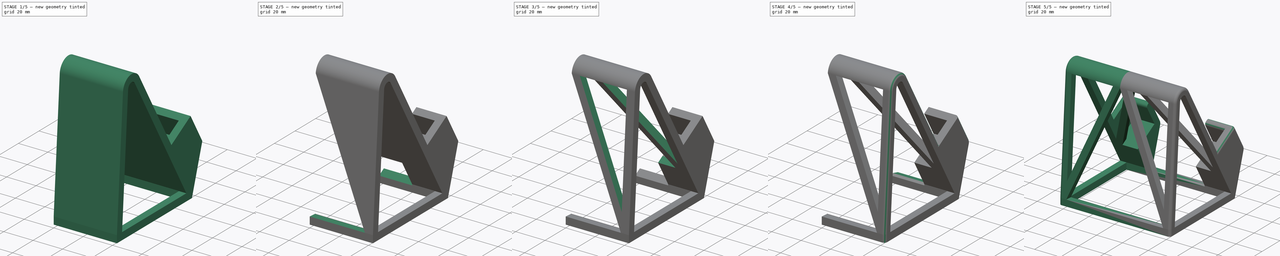
[diagram: build sequence overview — one tinted view per stage of 5, left to right]
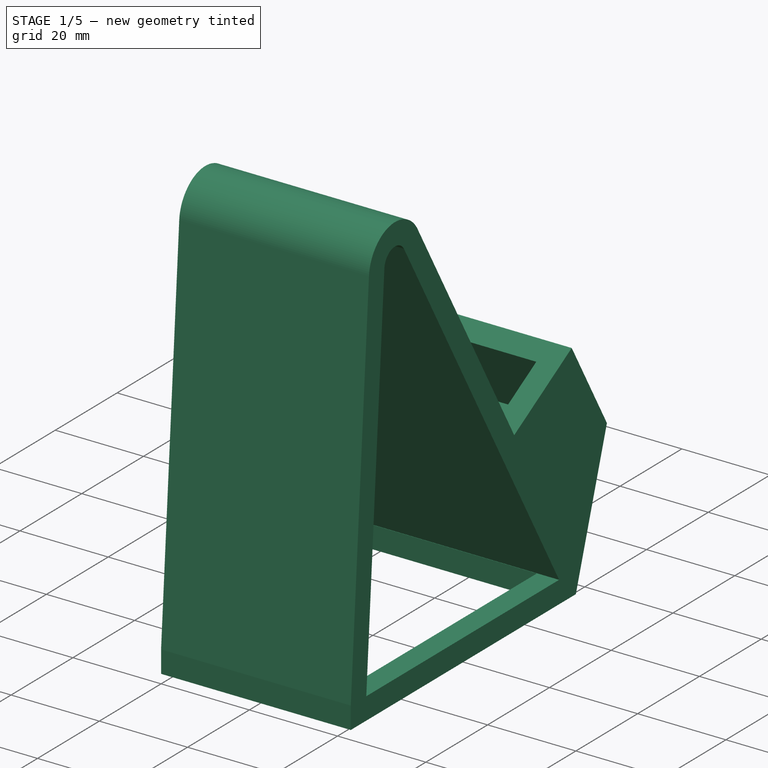
[diagram: stage 1 of 5 — iso view after this stage's code; geometry added in this stage tinted green]
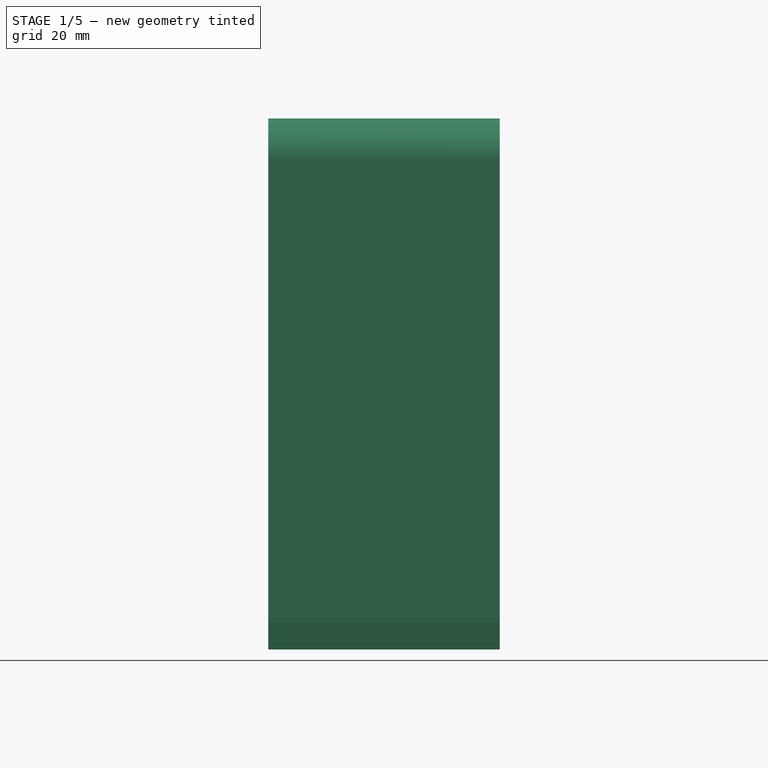
[diagram: stage 1 of 5 — front view after this stage's code; geometry added in this stage tinted green]
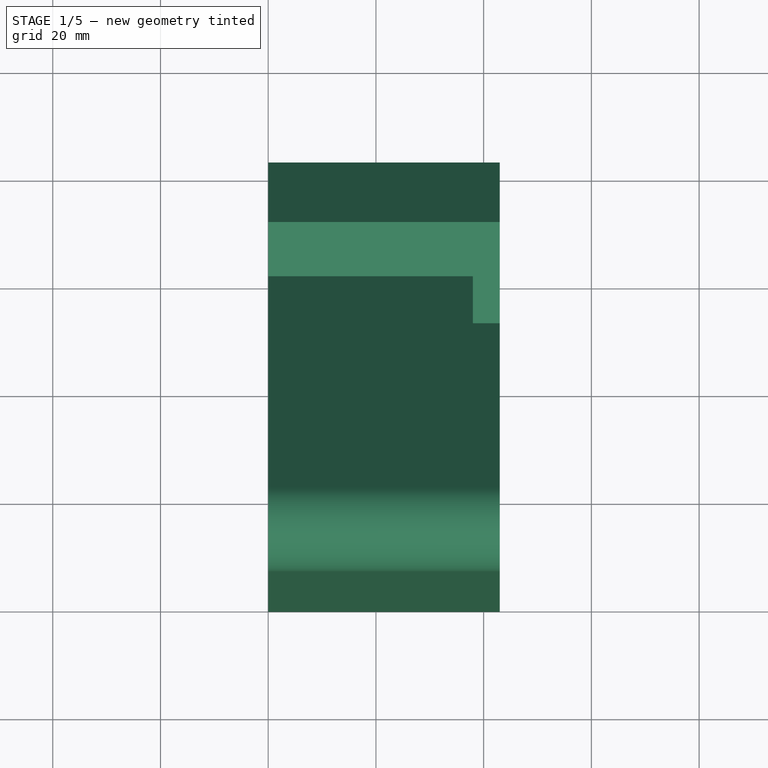
[diagram: stage 1 of 5 — top view after this stage's code; geometry added in this stage tinted green]
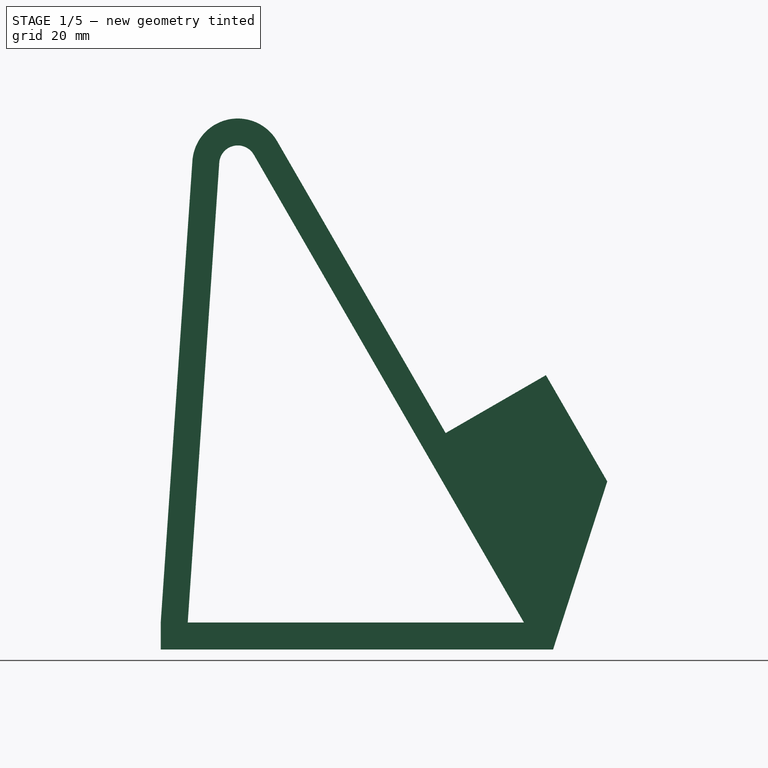
[diagram: stage 1 of 5 — right view after this stage's code; geometry added in this stage tinted green]
FCSTD DOCUMENT  (FreeCAD 0.14R3700 (Git))
Label: stand2plus
License: CC-BY 3.0
LicenseURL: http://creativecommons.org/licenses/by/3.0/
objects: Sketcher::SketchObject×10, PartDesign::Pocket×8, PartDesign::Fillet×5, PartDesign::Pad×2, Part::Fuse×2, PartDesign::Chamfer×1, Part::Mirroring×1
note: 39 computed .brp shape members not serialized (recipe doc carries the construction recipe); baked Part::Feature solids carry a one-line shape summary decoded from their .brp

FEATURE [Sketcher::SketchObject] Sketch
  Placement = pos=(0,0,0) rot=(0.57735,0.57735,0.57735;2.0944rad)
  sketch-geometry (15):
    g0: LineSegment StartX=0 StartY=5 StartZ=0 EndX=5.88072 EndY=90.7154 EndZ=0
    g1: LineSegment StartX=76.1849 StartY=32.8435 StartZ=0 EndX=67.1849 EndY=48.432 EndZ=0
    g2: LineSegment StartX=67.1849 StartY=48.432 StartZ=0 EndX=71.515 EndY=50.932 EndZ=0
    g3: LineSegment StartX=71.515 StartY=50.932 StartZ=0 EndX=82.9058 EndY=31.2026 EndZ=0
    g4: LineSegment StartX=72.8422 StartY=0 StartZ=0 EndX=0 EndY=0 EndZ=0
    g5: LineSegment StartX=0 StartY=0 StartZ=0 EndX=0 EndY=5 EndZ=0
    g6: LineSegment StartX=5.01175 StartY=5 StartZ=0 EndX=10.869 EndY=90.3732 EndZ=0
    g7: LineSegment StartX=17.2861 StartY=91.8592 StartZ=0 EndX=67.4343 EndY=5 EndZ=0
    g8: LineSegment StartX=67.4343 StartY=5 StartZ=0 EndX=5.01175 EndY=5 EndZ=0
    g9: LineSegment [constr] StartX=-19.6616 StartY=5 StartZ=0 EndX=67.4343 EndY=5 EndZ=0
    g10: ArcOfCircle CenterX=14.3042 CenterY=90.1375 CenterZ=0 NormalX=0 NormalY=0 NormalZ=1 Radius=3.44326 StartAngle=0.523599 EndAngle=3.07309
    g11: ArcOfCircle CenterX=14.3042 CenterY=90.1375 CenterZ=0 NormalX=0 NormalY=0 NormalZ=1 Radius=8.44326 StartAngle=0.5236 EndAngle=3.07309
    g12: LineSegment StartX=21.6162 StartY=94.3592 StartZ=0 EndX=61.8955 EndY=24.5935 EndZ=0
    g13: LineSegment StartX=61.8955 StartY=24.5935 StartZ=0 EndX=76.1849 EndY=32.8435 EndZ=0
    g14: LineSegment StartX=72.8422 StartY=0 StartZ=0 EndX=82.9058 EndY=31.2026 EndZ=0
  constraints (37):
    c: Coincident(g1,g2)
    c: Coincident(g2,g3)
    c: Horizontal(g4)
    c: Coincident(g4,g5)
    c: Coincident(g0,g5)
    c: Coincident(g4,g-1)
    c: Coincident(g7,g8)
    c: Parallel(g1,g3)
    c: PointOnObject(g0,g9)
    c: PointOnObject(g6,g9)
    c: Coincident(g8,g6)
    c: PointOnObject(g7,g9)
    c: Horizontal(g9)
    c: Parallel(g6,g0)
    c: Vertical(g5)
    c: DistanceY(g-1,g9) = 5
    c: Tangent(g6,g10)
    c: Tangent(g7,g10)
    c: Tangent(g0,g11)
    c: Coincident(g12,g11)
    c: Tangent(g12,g11)
    c: Angle(g7,g8) = 1.0472
    c: Parallel(g7,g12)
    c: Distance(g12,g7) = 5
    c: Distance(g6,g0) = 5
    c: Coincident(g10,g11)
    c: Angle(g2,g3) = 1.5708
    c: Distance(g1,g3) = 5
    c: Distance(g1,g12) = 16.5
    c: Coincident(g13,g12)
    c: Coincident(g13,g1)
    c: Angle(g13,g12) = 1.5708
    c: Angle(g1,g13) = 1.5708
    c: Coincident(g14,g4)
    c: Coincident(g14,g3)
    c: Coincident(g9,g7)
    c: Distance(g1,g1) = 18
FEATURE [PartDesign::Pad] Pad
  Length = 43
  Length2 = 100
  Placement = pos=(0,0,0) rot=(0.57735,0.57735,0.57735;2.0944rad)
  Sketch = -> Sketch
  Type = 0
FEATURE [Sketcher::SketchObject] Sketch001
  ExternalGeometry = -> [Pad]
  Placement = pos=(0,4.82457,-8.3564) rot=(0.250563,0.250563,-0.935113;1.63783rad)
  Support = -> Pad [Face6]
  sketch-geometry (4):
    g0: LineSegment StartX=-82.3998 StartY=38 StartZ=0 EndX=-65.8998 EndY=38 EndZ=0
    g1: LineSegment StartX=-65.8998 StartY=38 StartZ=0 EndX=-65.8998 EndY=43 EndZ=0
    g2: LineSegment StartX=-65.8998 StartY=43 StartZ=0 EndX=-82.3998 EndY=43 EndZ=0
    g3: LineSegment StartX=-82.3998 StartY=43 StartZ=0 EndX=-82.3998 EndY=38 EndZ=0
  constraints (11):
    c: Coincident(g0,g1)
    c: Coincident(g1,g2)
    c: Coincident(g2,g3)
    c: Coincident(g3,g0)
    c: Horizontal(g0)
    c: Horizontal(g2)
    c: Vertical(g1)
    c: Vertical(g3)
    c: Coincident(g2,g-4)
    c: Coincident(g1,g-5)
    c: DistanceY(g2,g0) = -5
FEATURE [PartDesign::Pad] Pad001
  Length = 18
  Length2 = 100
  Placement = pos=(0,0,0) rot=(0.57735,0.57735,0.57735;2.0944rad)
  Sketch = -> Sketch001
  Type = 0
FEATURE [Part::Fuse] Fusion
  Base = -> Pad
  Tool = -> Pad001
FEATURE [Sketcher::SketchObject] Sketch003
  ExternalGeometry = -> [Fusion]
  Placement = pos=(0,0,0) rot=(1,0,0;3.14159rad)
  Support = -> Fusion [Face1]
  sketch-geometry (4):
    g0: LineSegment StartX=38 StartY=-5 StartZ=0 EndX=0 EndY=-5 EndZ=0
    g1: LineSegment StartX=0 StartY=-5 StartZ=0 EndX=0 EndY=-67.3422 EndZ=0
    g2: LineSegment StartX=0 StartY=-67.3422 StartZ=0 EndX=38 EndY=-67.3422 EndZ=0
    g3: LineSegment StartX=38 StartY=-67.3422 StartZ=0 EndX=38 EndY=-5 EndZ=0
  constraints (12):
    c: Coincident(g0,g1)
    c: Coincident(g1,g2)
    c: Coincident(g2,g3)
    c: Coincident(g3,g0)
    c: Horizontal(g0)
    c: Horizontal(g2)
    c: Vertical(g1)
    c: Vertical(g3)
    c: DistanceY(g-3,g1) = 5.5
    c: PointOnObject(g1,g-2)
    c: DistanceX(g2,g-3) = 5
    c: DistanceY(g-1,g0) = -5
FEATURE [PartDesign::Pocket] Pocket
  Length = 5
  Sketch = -> Sketch003
  Type = 0
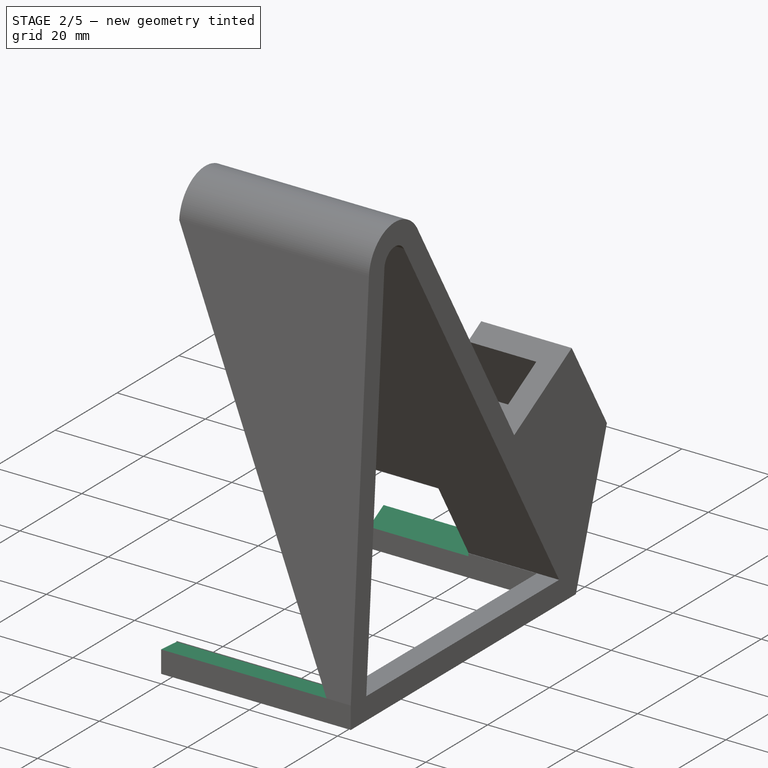
[diagram: stage 2 of 5 — iso view after this stage's code; geometry added in this stage tinted green]
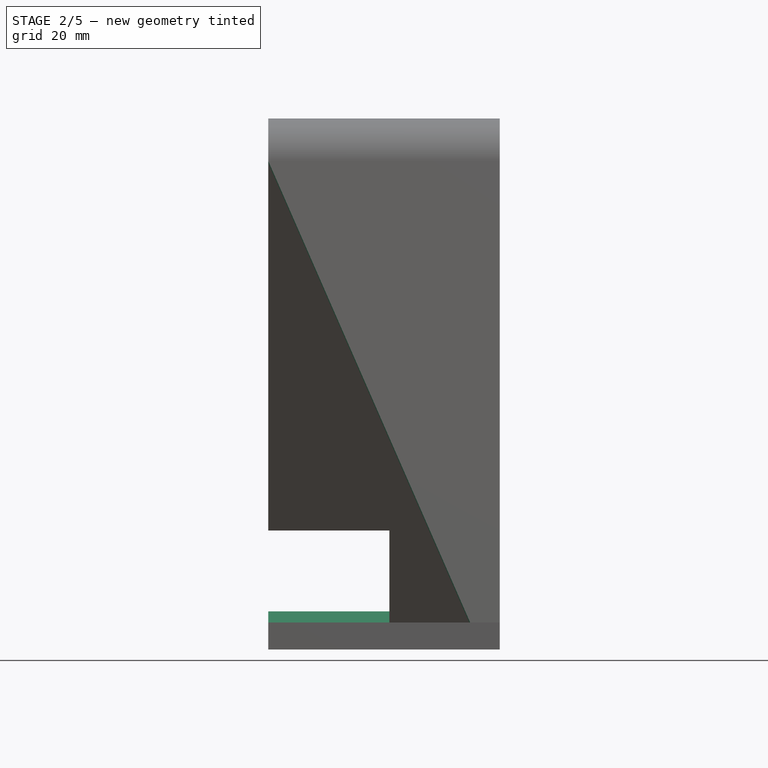
[diagram: stage 2 of 5 — front view after this stage's code; geometry added in this stage tinted green]
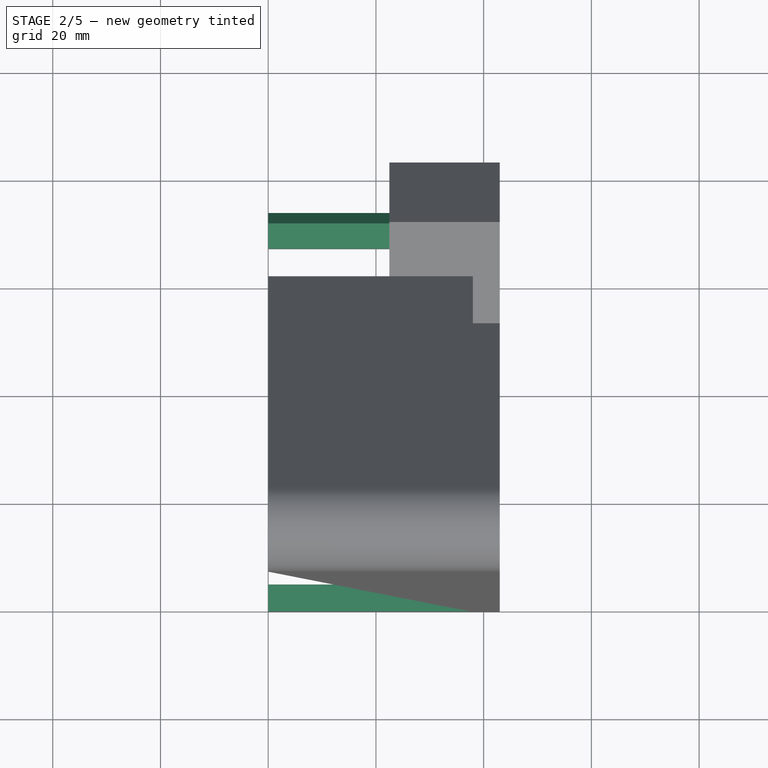
[diagram: stage 2 of 5 — top view after this stage's code; geometry added in this stage tinted green]
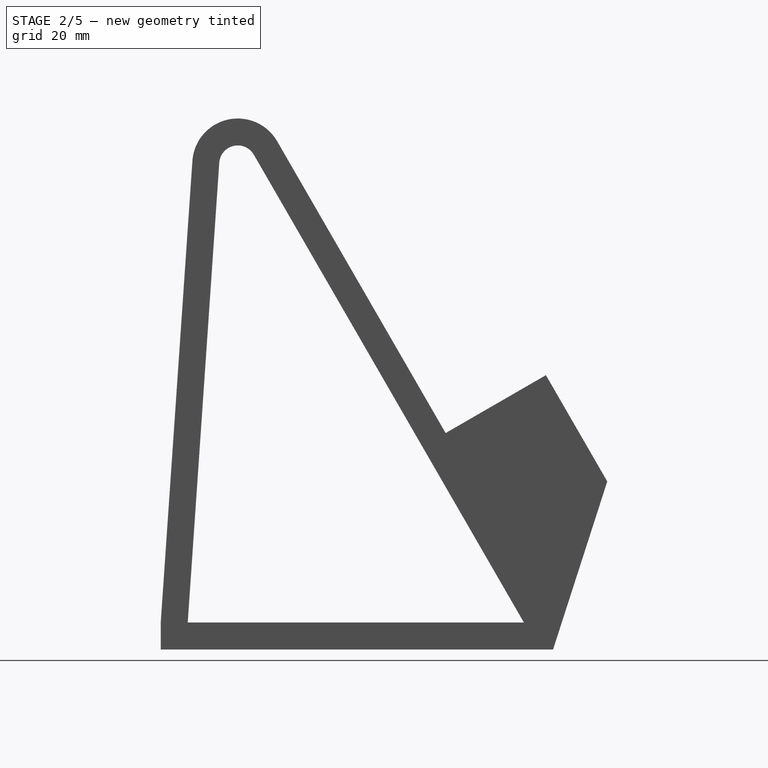
[diagram: stage 2 of 5 — right view after this stage's code; geometry added in this stage tinted green]
FEATURE [Sketcher::SketchObject] Sketch004
  Placement = pos=(0,-4.17543,7.23206) rot=(1,0,0;0.523599rad)
  Support = -> Pocket [Face19]
  sketch-geometry (4):
    g0: LineSegment StartX=22.5 StartY=82.3998 StartZ=0 EndX=0 EndY=82.3998 EndZ=0
    g1: LineSegment StartX=0 StartY=82.3998 StartZ=0 EndX=0 EndY=87.3998 EndZ=0
    g2: LineSegment StartX=0 StartY=87.3998 StartZ=0 EndX=22.5 EndY=87.3998 EndZ=0
    g3: LineSegment StartX=22.5 StartY=87.3998 StartZ=0 EndX=22.5 EndY=82.3998 EndZ=0
  constraints (8):
    c: Coincident(g0,g1)
    c: Coincident(g1,g2)
    c: Coincident(g2,g3)
    c: Coincident(g3,g0)
    c: Horizontal(g0)
    c: Horizontal(g2)
    c: Vertical(g1)
    c: Vertical(g3)
FEATURE [PartDesign::Pocket] Pocket001
  Length = 5
  Sketch = -> Sketch004
  Type = 1
FEATURE [Sketcher::SketchObject] Sketch005
  Placement = pos=(0,4.82457,-8.3564) rot=(1,0,0;0.523599rad)
  Support = -> Pocket001 [Face17]
  sketch-geometry (4):
    g0: LineSegment StartX=22.5 StartY=65.8998 StartZ=0 EndX=0 EndY=65.8998 EndZ=0
    g1: LineSegment StartX=0 StartY=65.8998 StartZ=0 EndX=0 EndY=82.3998 EndZ=0
    g2: LineSegment StartX=0 StartY=82.3998 StartZ=0 EndX=22.5 EndY=82.3998 EndZ=0
    g3: LineSegment StartX=22.5 StartY=82.3998 StartZ=0 EndX=22.5 EndY=65.8998 EndZ=0
  constraints (8):
    c: Coincident(g0,g1)
    c: Coincident(g1,g2)
    c: Coincident(g2,g3)
    c: Coincident(g3,g0)
    c: Horizontal(g0)
    c: Horizontal(g2)
    c: Vertical(g1)
    c: Vertical(g3)
FEATURE [PartDesign::Pocket] Pocket002
  Length = 5
  Sketch = -> Sketch005
  Type = 1
FEATURE [Sketcher::SketchObject] Sketch006
  Placement = pos=(0,57.0709,32.9499) rot=(0,0.5,0.866025;3.14159rad)
  Support = -> Pocket002 [Face17]
  sketch-geometry (4):
    g0: LineSegment StartX=0 StartY=-29.8739 StartZ=0 EndX=-22.5 EndY=-29.8739 EndZ=0
    g1: LineSegment StartX=-22.5 StartY=-29.8739 StartZ=0 EndX=-22.5 EndY=-9.64914 EndZ=0
    g2: LineSegment StartX=-22.5 StartY=-9.64914 StartZ=0 EndX=0 EndY=-9.64914 EndZ=0
    g3: LineSegment StartX=0 StartY=-9.64914 StartZ=0 EndX=0 EndY=-29.8739 EndZ=0
  constraints (8):
    c: Coincident(g0,g1)
    c: Coincident(g1,g2)
    c: Coincident(g2,g3)
    c: Coincident(g3,g0)
    c: Horizontal(g0)
    c: Horizontal(g2)
    c: Vertical(g1)
    c: Vertical(g3)
FEATURE [PartDesign::Pocket] Pocket003
  Length = 6
  Sketch = -> Sketch006
  Type = 0
FEATURE [Sketcher::SketchObject] Sketch007
  Placement = pos=(0,-0.34143,0.0234246) rot=(1,0,0;1.5023rad)
  Support = -> Pocket003 [Face19]
  sketch-geometry (3):
    g0: LineSegment StartX=0 StartY=90.9052 StartZ=0 EndX=37.5 EndY=4.98827 EndZ=0
    g1: LineSegment StartX=37.5 StartY=4.98827 StartZ=0 EndX=0 EndY=4.98827 EndZ=0
    g2: LineSegment StartX=0 StartY=4.98827 StartZ=0 EndX=0 EndY=90.9052 EndZ=0
  constraints (4):
    c: Coincident(g0,g1)
    c: Horizontal(g1)
    c: Coincident(g1,g2)
    c: Coincident(g2,g0)
FEATURE [PartDesign::Pocket] Pocket004
  Length = 5
  Sketch = -> Sketch007
  Type = 0
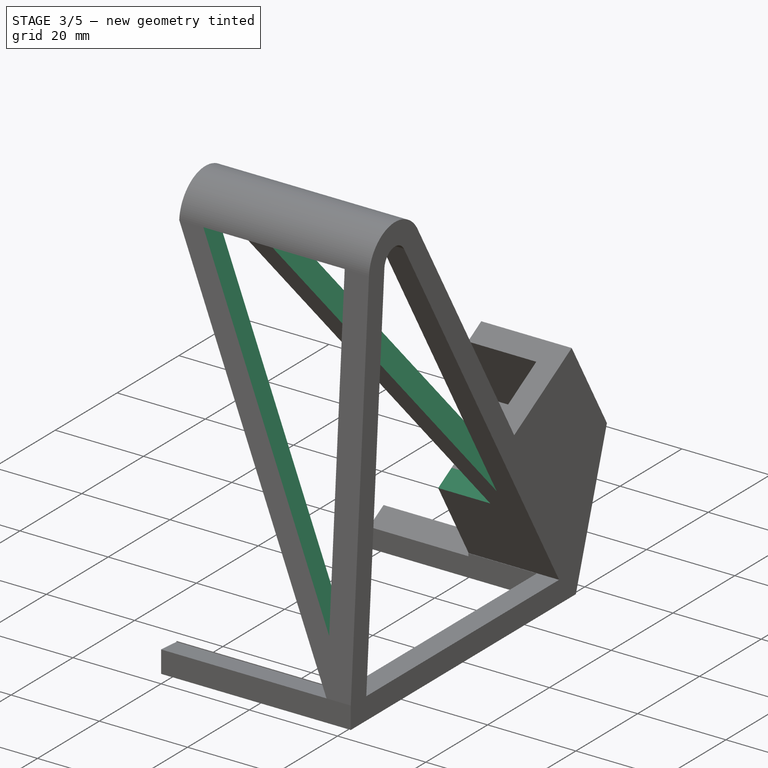
[diagram: stage 3 of 5 — iso view after this stage's code; geometry added in this stage tinted green]
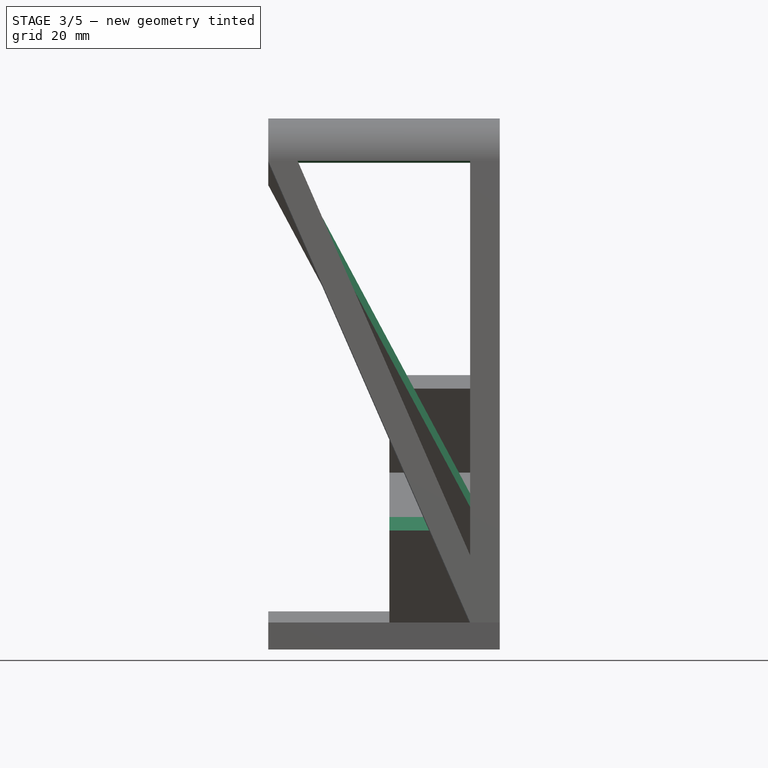
[diagram: stage 3 of 5 — front view after this stage's code; geometry added in this stage tinted green]
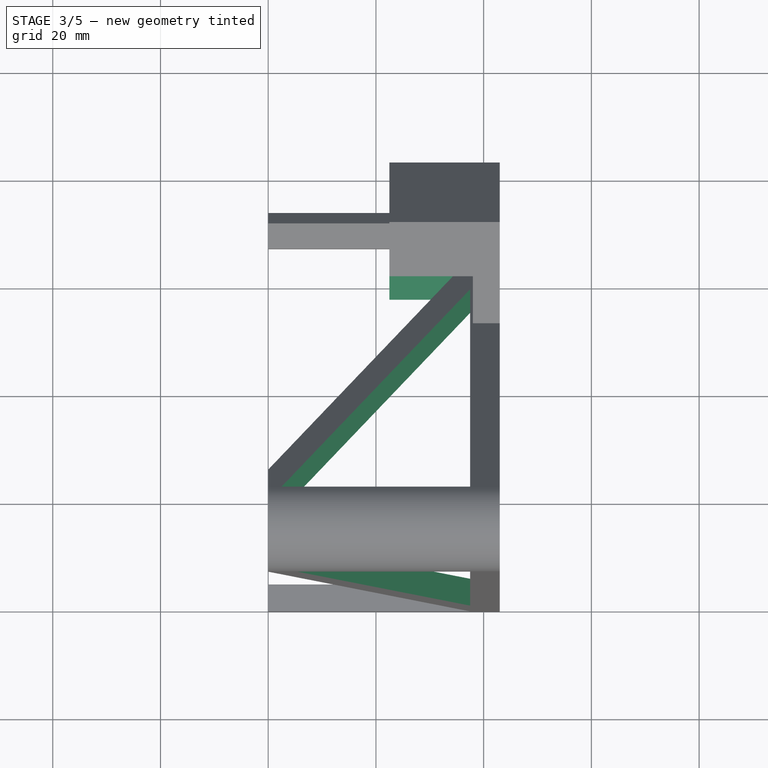
[diagram: stage 3 of 5 — top view after this stage's code; geometry added in this stage tinted green]
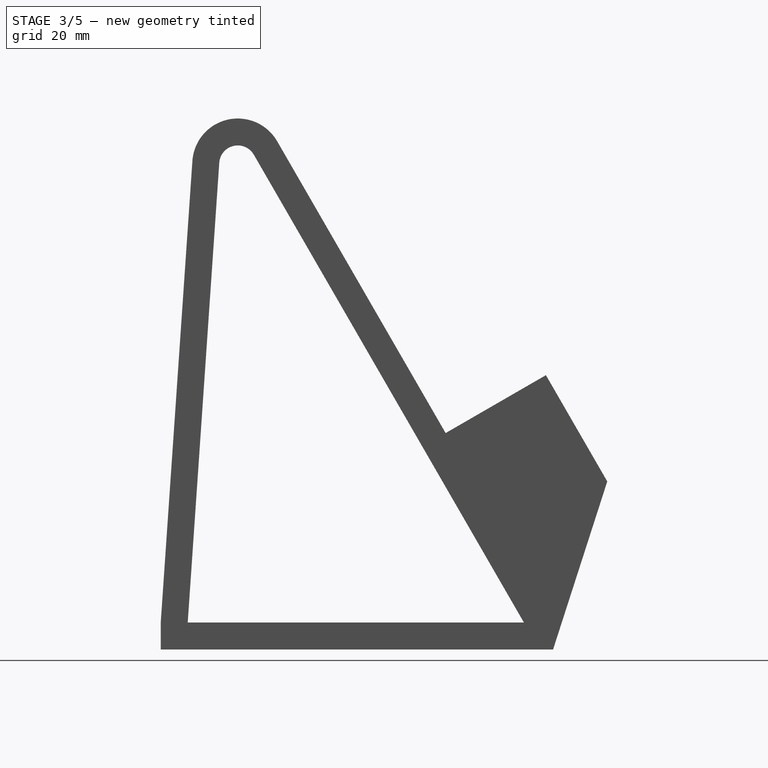
[diagram: stage 3 of 5 — right view after this stage's code; geometry added in this stage tinted green]
FEATURE [Sketcher::SketchObject] Sketch008
  Placement = pos=(0,-0.34143,0.0234246) rot=(1,0,0;1.5023rad)
  Support = -> Pocket004 [Face18]
  sketch-geometry (3):
    g0: LineSegment StartX=37.5 StartY=90.9052 StartZ=0 EndX=37.5 EndY=17.4875 EndZ=0
    g1: LineSegment StartX=37.5 StartY=17.4875 StartZ=0 EndX=5.45551 EndY=90.9052 EndZ=0
    g2: LineSegment StartX=5.45551 StartY=90.9052 StartZ=0 EndX=37.5 EndY=90.9052 EndZ=0
  constraints (5):
    c: Vertical(g0)
    c: Coincident(g0,g1)
    c: Coincident(g1,g2)
    c: Horizontal(g2)
    c: Coincident(g0,g2)
FEATURE [PartDesign::Pocket] Pocket005
  Length = 5
  Sketch = -> Sketch008
  Type = 0
FEATURE [Sketcher::SketchObject] Sketch009
  Placement = pos=(0,57.0709,32.9499) rot=(0,0.5,0.866025;3.14159rad)
  Support = -> Pocket005 [Face21]
  sketch-geometry (3):
    g0: LineSegment StartX=-37.5 StartY=70.9093 StartZ=0 EndX=-2.5 EndY=70.9093 EndZ=0
    g1: LineSegment StartX=-2.5 StartY=70.9093 StartZ=0 EndX=-37.5 EndY=-4.64914 EndZ=0
    g2: LineSegment StartX=-37.5 StartY=-4.64914 StartZ=0 EndX=-37.5 EndY=70.9093 EndZ=0
  constraints (6):
    c: Horizontal(g0)
    c: Coincident(g0,g1)
    c: Coincident(g1,g2)
    c: Coincident(g2,g0)
    c: Vertical(g2)
    c: DistanceX(g-1,g0) = -2.5
FEATURE [PartDesign::Pocket] Pocket006
  Length = 5
  Sketch = -> Sketch009
  Type = 0
FEATURE [Sketcher::SketchObject] Sketch010
  Placement = pos=(0,57.0709,32.9499) rot=(0,0.5,0.866025;3.14159rad)
  Support = -> Pocket006 [Face11]
  sketch-geometry (3):
    g0: LineSegment StartX=0 StartY=64.4105 StartZ=0 EndX=-34.3057 EndY=-9.64914 EndZ=0
    g1: LineSegment StartX=-34.3057 StartY=-9.64914 StartZ=0 EndX=0 EndY=-9.64914 EndZ=0
    g2: LineSegment StartX=0 StartY=-9.64914 StartZ=0 EndX=0 EndY=64.4105 EndZ=0
  constraints (6):
    c: Coincident(g0,g1)
    c: PointOnObject(g1,g-2)
    c: Horizontal(g1)
    c: Coincident(g1,g2)
    c: Coincident(g2,g0)
    c: Vertical(g2)
FEATURE [PartDesign::Pocket] Pocket007
  Length = 5
  Sketch = -> Sketch010
  Type = 0
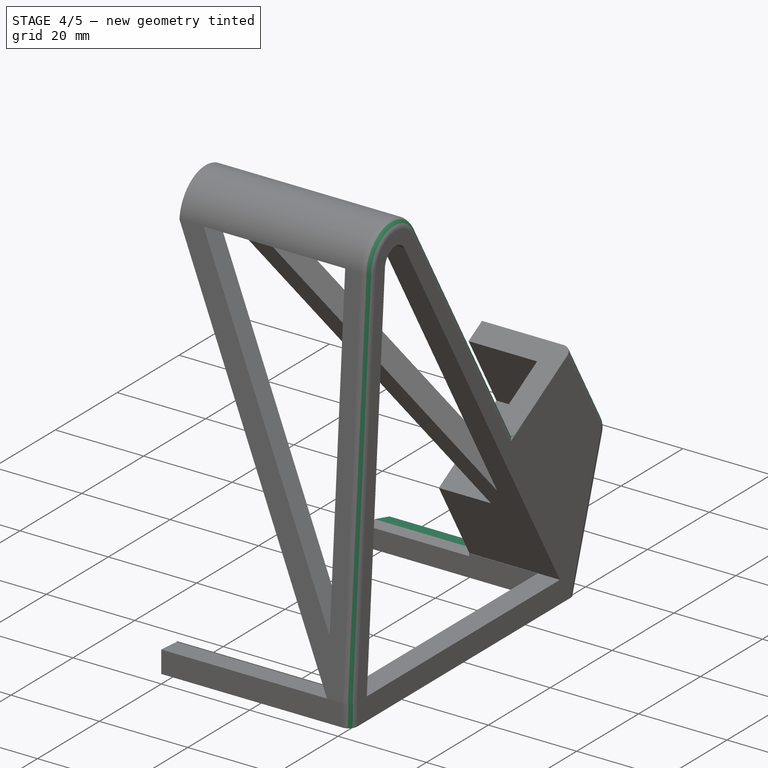
[diagram: stage 4 of 5 — iso view after this stage's code; geometry added in this stage tinted green]
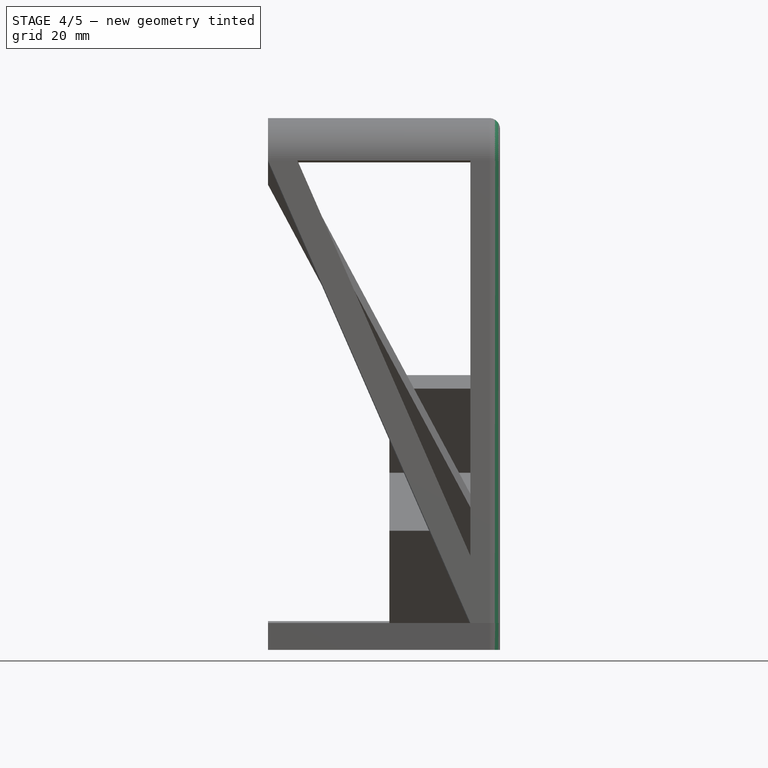
[diagram: stage 4 of 5 — front view after this stage's code; geometry added in this stage tinted green]
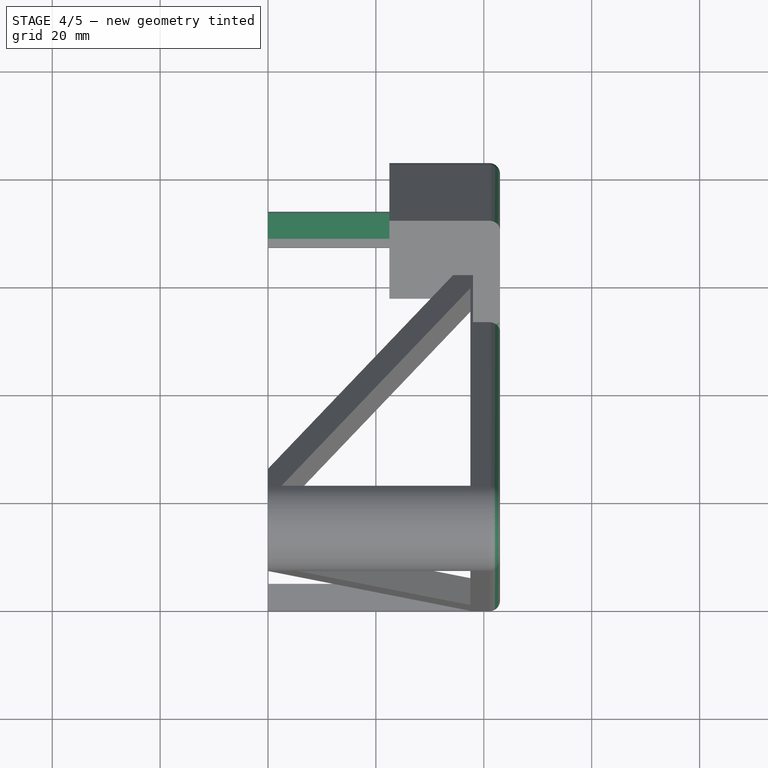
[diagram: stage 4 of 5 — top view after this stage's code; geometry added in this stage tinted green]
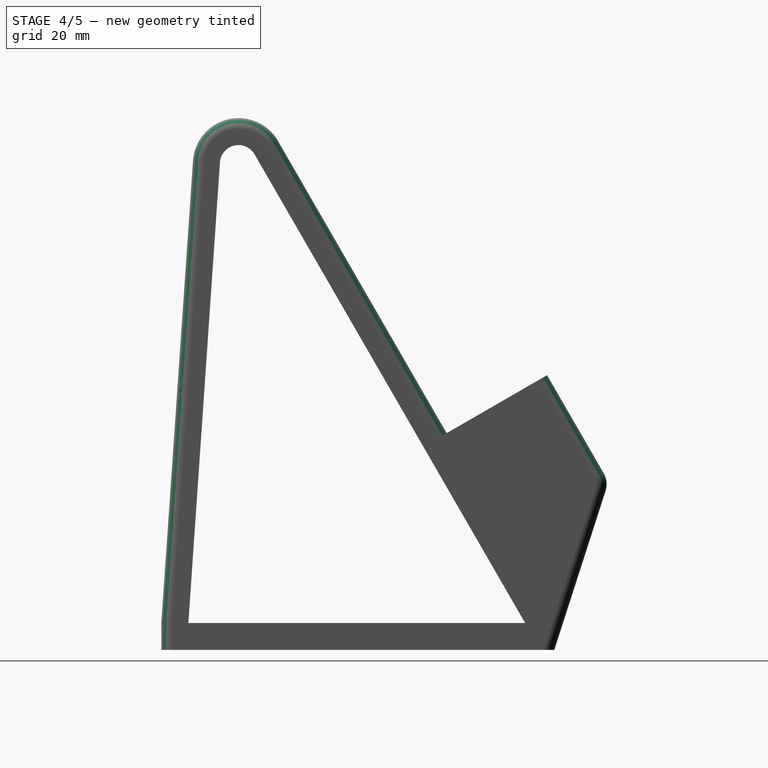
[diagram: stage 4 of 5 — right view after this stage's code; geometry added in this stage tinted green]
FEATURE [PartDesign::Fillet] Fillet
  Base = -> Pocket007 [Edge33,Edge35]
  Radius = 2
FEATURE [PartDesign::Fillet] Fillet001
  Base = -> Fillet [Edge38]
  Radius = 4
FEATURE [PartDesign::Fillet] Fillet002
  Base = -> Fillet001 [Edge4,Edge1]
  Radius = 2
FEATURE [PartDesign::Chamfer] Chamfer
  Base = -> Fillet002 [Edge132]
  Size = 3.5
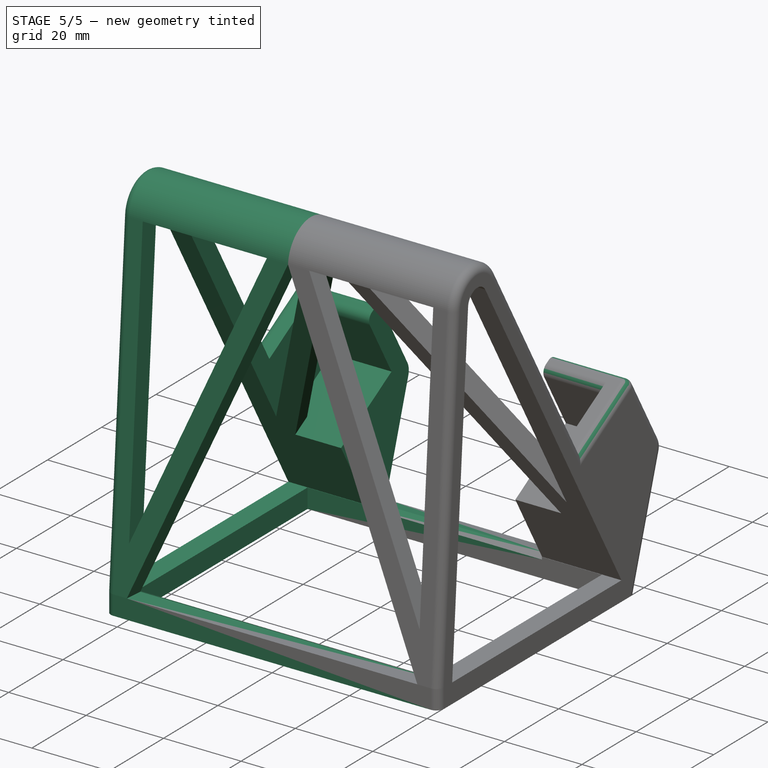
[diagram: stage 5 of 5 — iso view after this stage's code; geometry added in this stage tinted green]
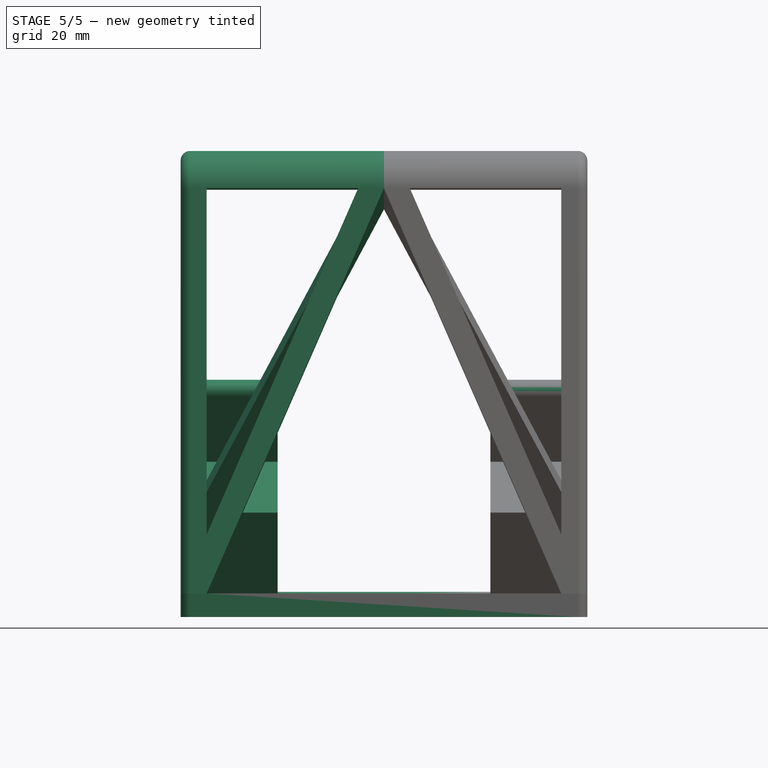
[diagram: stage 5 of 5 — front view after this stage's code; geometry added in this stage tinted green]
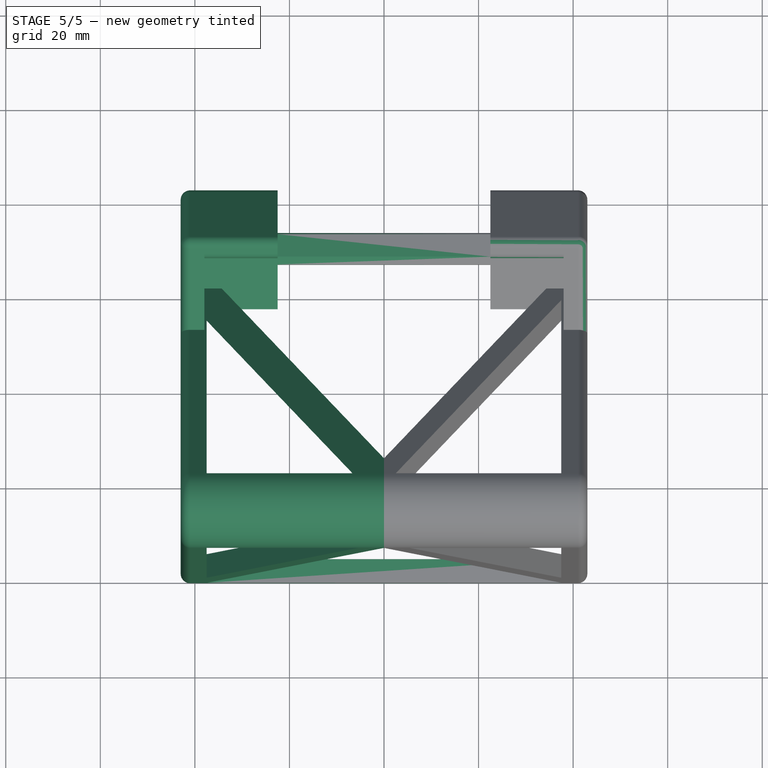
[diagram: stage 5 of 5 — top view after this stage's code; geometry added in this stage tinted green]
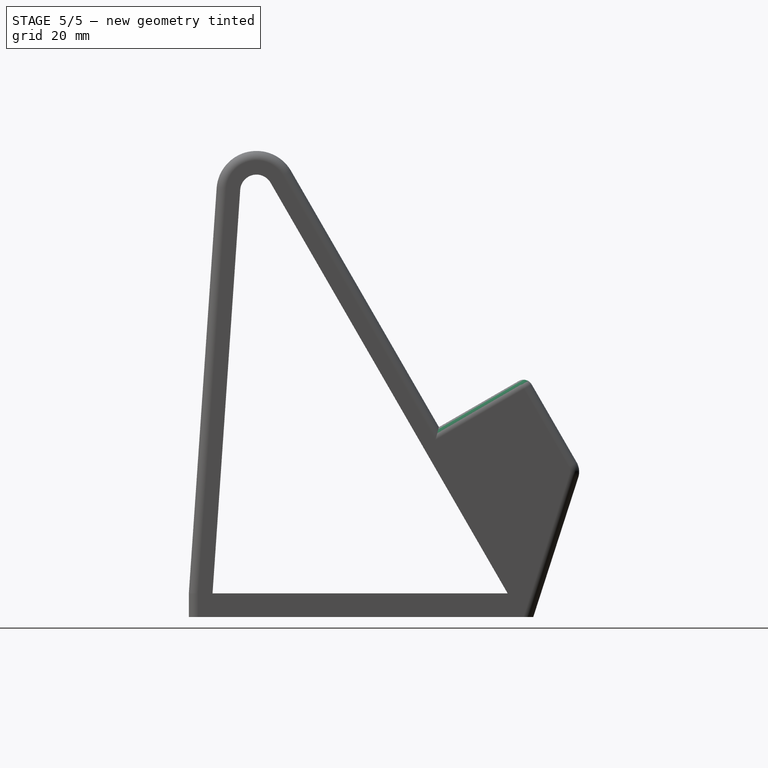
[diagram: stage 5 of 5 — right view after this stage's code; geometry added in this stage tinted green]
FEATURE [PartDesign::Fillet] Fillet003
  Base = -> Chamfer [Edge49,Edge99]
  Radius = 2
FEATURE [PartDesign::Fillet] Fillet004  label="final-half"
  Base = -> Fillet003 [Edge73]
  Radius = 2
FEATURE [Part::Mirroring] Part__Mirroring  label="final-half (Mirror #1)"
  Base = (0,0,0)
  Normal = (1,0,0)
  Source = -> Fillet004
FEATURE [Part::Fuse] Fusion001
  Base = -> Fillet004
  Tool = -> Part__Mirroring
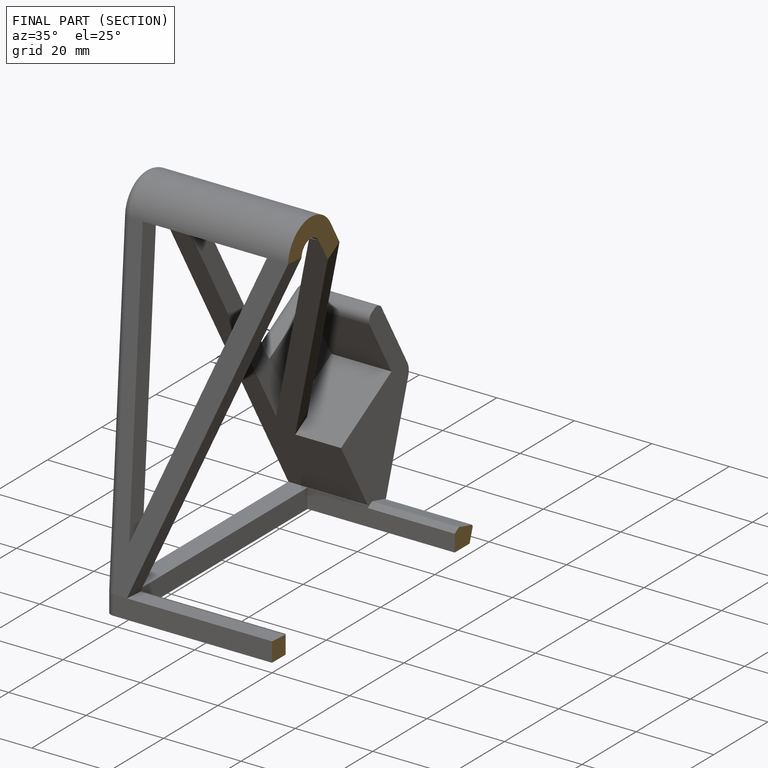
[diagram: finished part — half-section view (interior)]
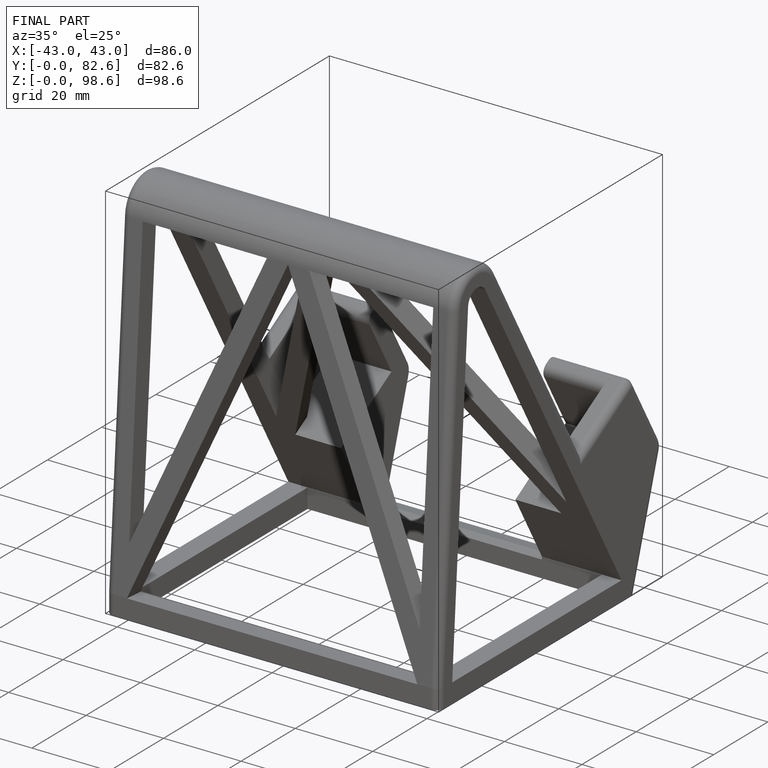
[diagram: finished part — iso view with bounding-box wireframe]
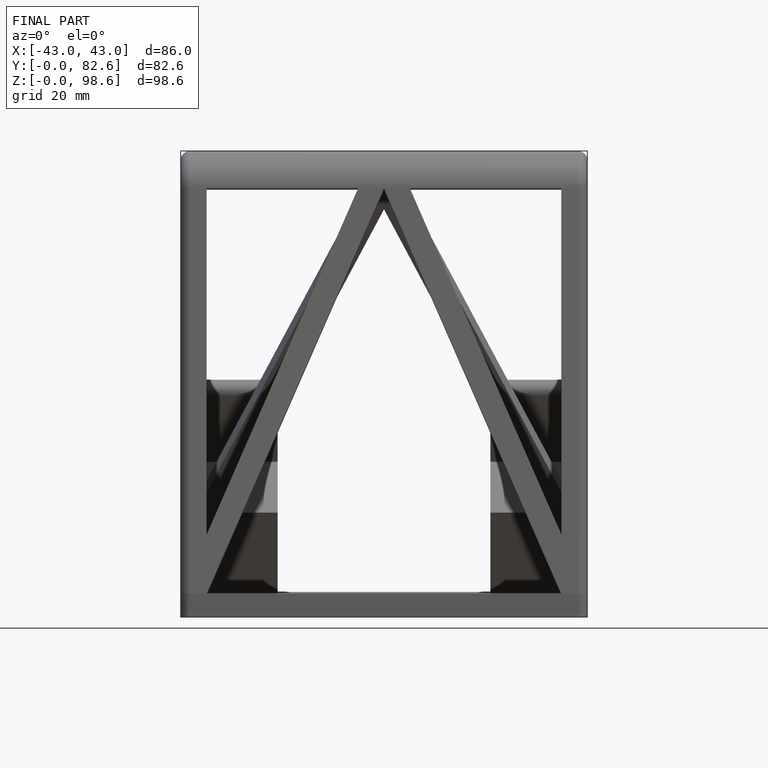
[diagram: finished part — front view with bounding-box wireframe]
